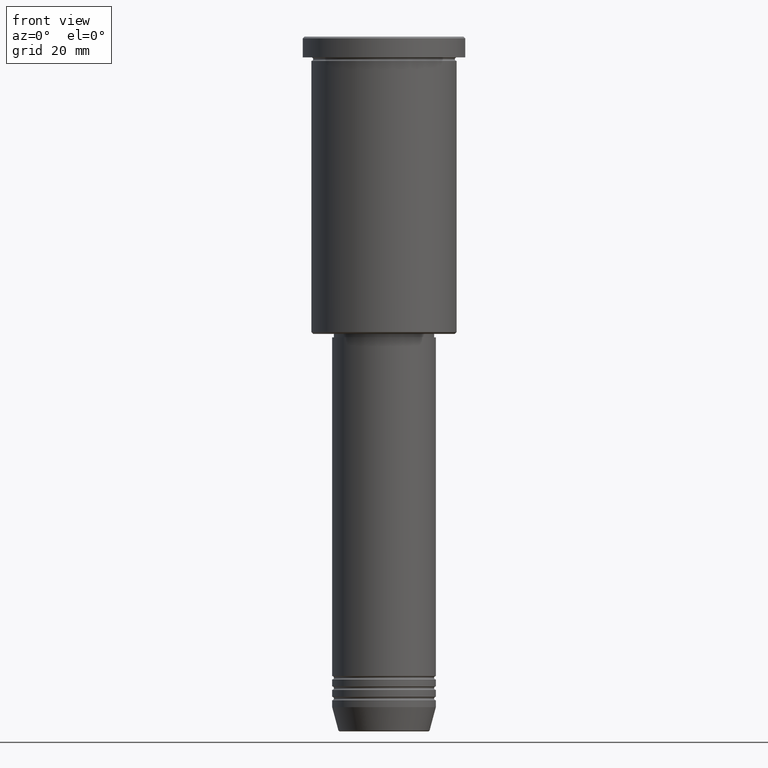
[diagram: clean part render]
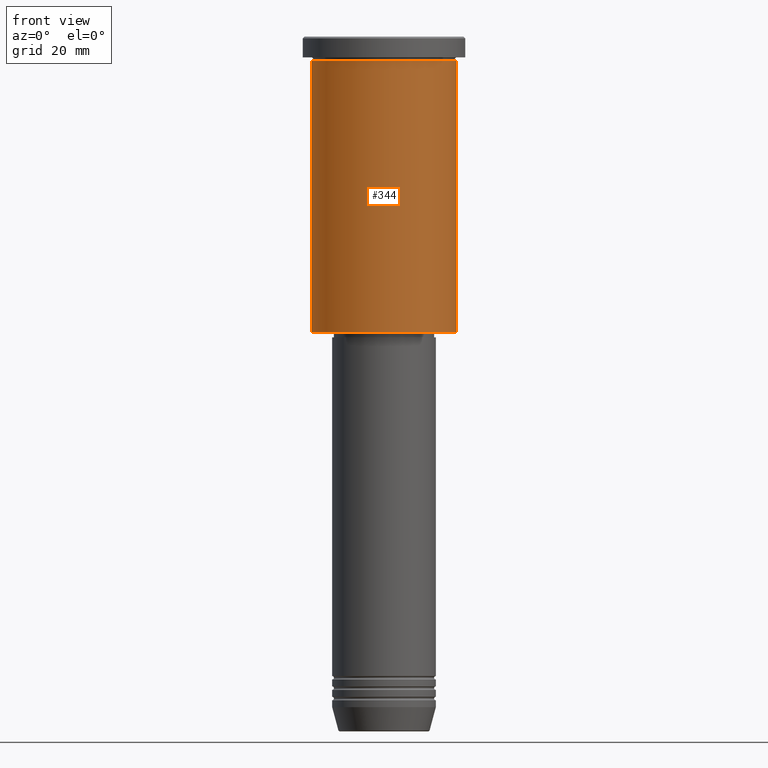
[diagram: same view with one face highlighted and labeled with its STEP entity id]
A machine part, front view. The second image highlights one B-rep face of the part: STEP entity #344.
In plain terms, the highlighted cylindrical surface (partial cylindrical patch) has radius 21 mm, axis along (-0, -0, 1).
Its self-contained STEP definition (entity closure, byte-faithful):
#14 = FACE_OUTER_BOUND ( 'NONE', #534, .T. ) ;
#81 = CARTESIAN_POINT ( 'NONE',  ( 0.000000000000000000, 0.000000000000000000, -85.49999999999997158 ) ) ;
#100 = DIRECTION ( 'NONE',  ( -1.000000000000000000, 0.000000000000000000, 0.000000000000000000 ) ) ;
#150 = VECTOR ( 'NONE', #752, 1000.000000000000000 ) ;
#210 = CARTESIAN_POINT ( 'NONE',  ( -21.00000000000000000, 2.571758278209441661E-15, 0.000000000000000000 ) ) ;
#271 = DIRECTION ( 'NONE',  ( -0.000000000000000000, -0.000000000000000000, 1.000000000000000000 ) ) ;
#332 = VECTOR ( 'NONE', #271, 1000.000000000000000 ) ;
#344 = ADVANCED_FACE ( 'NONE', ( #14 ), #748, .T. ) ;
#354 = CARTESIAN_POINT ( 'NONE',  ( -21.00000000000000000, 2.571758278209441661E-15, -6.999999999999994671 ) ) ;
#373 = DIRECTION ( 'NONE',  ( -0.000000000000000000, -0.000000000000000000, 1.000000000000000000 ) ) ;
#398 = LINE ( 'NONE', #472, #332 ) ;
#441 = VERTEX_POINT ( 'NONE', #957 ) ;
#447 = ORIENTED_EDGE ( 'NONE', *, *, #1108, .F. ) ;
#453 = EDGE_CURVE ( 'NONE', #764, #974, #777, .T. ) ;
#466 = DIRECTION ( 'NONE',  ( -0.000000000000000000, -0.000000000000000000, 1.000000000000000000 ) ) ;
#472 = CARTESIAN_POINT ( 'NONE',  ( 21.00000000000000000, 0.000000000000000000, 0.000000000000000000 ) ) ;
#534 = EDGE_LOOP ( 'NONE', ( #1027, #1092, #986, #447 ) ) ;
#547 = DIRECTION ( 'NONE',  ( 1.000000000000000000, 0.000000000000000000, 0.000000000000000000 ) ) ;
#556 = AXIS2_PLACEMENT_3D ( 'NONE', #1107, #661, #1016 ) ;
#563 = CARTESIAN_POINT ( 'NONE',  ( 0.000000000000000000, 0.000000000000000000, -6.999999999999994671 ) ) ;
#587 = CARTESIAN_POINT ( 'NONE',  ( -21.00000000000000000, 2.571758278209441661E-15, -85.49999999999997158 ) ) ;
#653 = AXIS2_PLACEMENT_3D ( 'NONE', #81, #466, #100 ) ;
#661 = DIRECTION ( 'NONE',  ( -0.000000000000000000, -0.000000000000000000, 1.000000000000000000 ) ) ;
#748 = CYLINDRICAL_SURFACE ( 'NONE', #556, 21.00000000000000000 ) ;
#752 = DIRECTION ( 'NONE',  ( -0.000000000000000000, -0.000000000000000000, 1.000000000000000000 ) ) ;
#764 = VERTEX_POINT ( 'NONE', #587 ) ;
#777 = LINE ( 'NONE', #210, #150 ) ;
#809 = CARTESIAN_POINT ( 'NONE',  ( 21.00000000000000000, 0.000000000000000000, -6.999999999999994671 ) ) ;
#957 = CARTESIAN_POINT ( 'NONE',  ( 21.00000000000000000, 0.000000000000000000, -85.49999999999997158 ) ) ;
#974 = VERTEX_POINT ( 'NONE', #354 ) ;
#986 = ORIENTED_EDGE ( 'NONE', *, *, #1130, .T. ) ;
#1016 = DIRECTION ( 'NONE',  ( 1.000000000000000000, 0.000000000000000000, 0.000000000000000000 ) ) ;
#1027 = ORIENTED_EDGE ( 'NONE', *, *, #453, .F. ) ;
#1044 = CIRCLE ( 'NONE', #653, 21.00000000000000000 ) ;
#1061 = AXIS2_PLACEMENT_3D ( 'NONE', #563, #373, #547 ) ;
#1074 = VERTEX_POINT ( 'NONE', #809 ) ;
#1092 = ORIENTED_EDGE ( 'NONE', *, *, #1124, .T. ) ;
#1107 = CARTESIAN_POINT ( 'NONE',  ( 0.000000000000000000, 0.000000000000000000, 0.000000000000000000 ) ) ;
#1108 = EDGE_CURVE ( 'NONE', #974, #1074, #1156, .T. ) ;
#1124 = EDGE_CURVE ( 'NONE', #764, #441, #1044, .T. ) ;
#1130 = EDGE_CURVE ( 'NONE', #441, #1074, #398, .T. ) ;
#1156 = CIRCLE ( 'NONE', #1061, 21.00000000000000000 ) ;